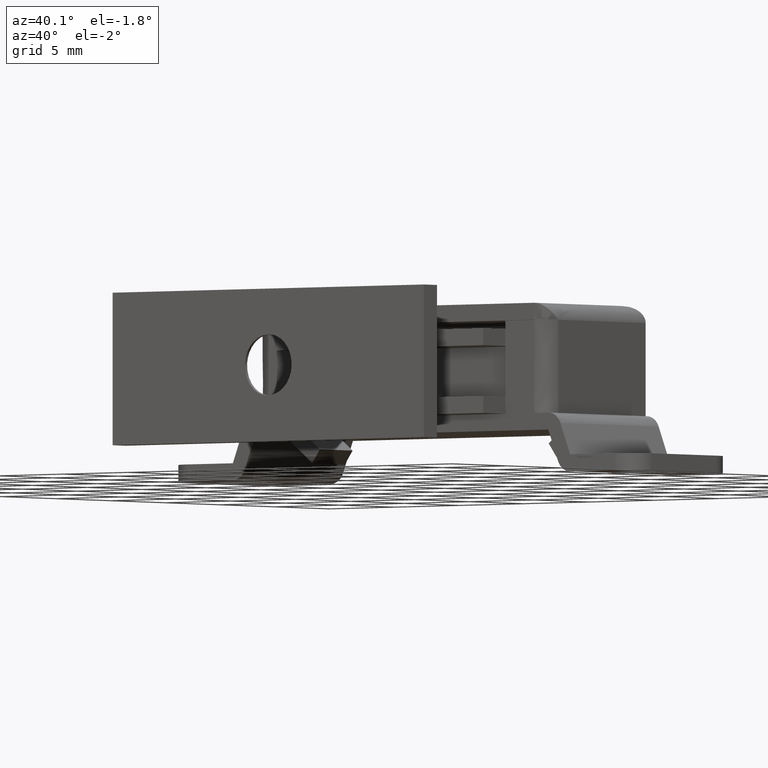
[diagram: clean part render]
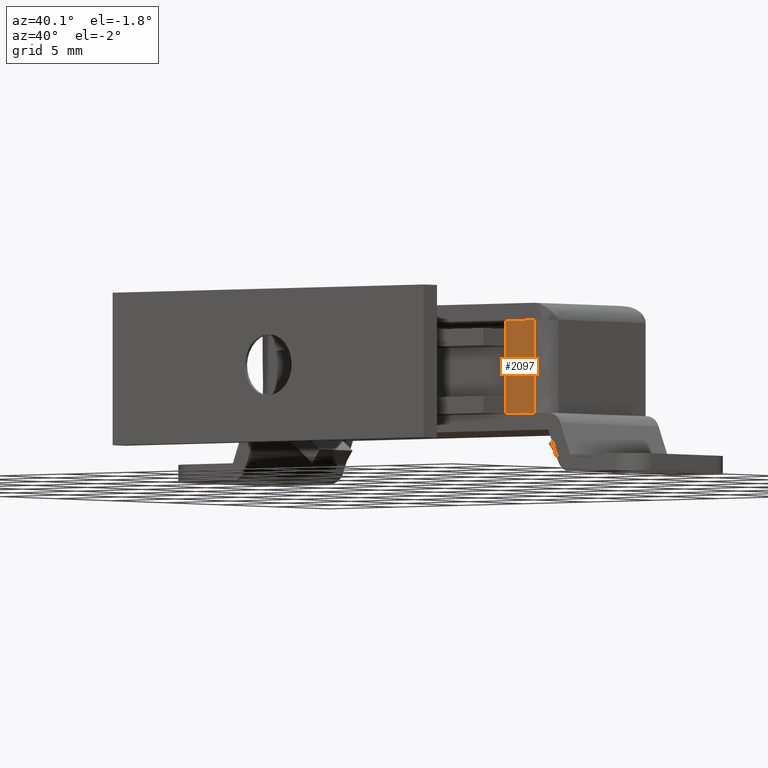
[diagram: same view with one face highlighted and labeled with its STEP entity id]
A machine part, auxiliary view. The second image highlights one B-rep face of the part: STEP entity #2097.
In plain terms, the highlighted face is a freeform B-spline surface patch.
Its self-contained STEP definition (entity closure, byte-faithful):
#974=CARTESIAN_POINT('',(8.0,-9.000000000000108,8.990000000000000));
#975=VERTEX_POINT('',#974);
#981=CARTESIAN_POINT('',(10.250000000000000,-9.000000000000108,8.990000000000000));
#982=VERTEX_POINT('',#981);
#983=CARTESIAN_POINT('',(8.0,-9.000000000000108,8.990000000000000));
#984=CARTESIAN_POINT('',(10.250000000000000,-9.000000000000108,8.990000000000000));
#985=QUASI_UNIFORM_CURVE('',1,(#983,#984),.UNSPECIFIED.,.F.,.U.);
#986=EDGE_CURVE('',#975,#982,#985,.T.);
#1447=CARTESIAN_POINT('',(10.250000000000000,-9.000000000000108,3.500000000000000));
#1448=VERTEX_POINT('',#1447);
#1496=CARTESIAN_POINT('',(10.250000000000000,-9.000000000000108,3.500000000000000));
#1497=CARTESIAN_POINT('',(10.250000000000000,-9.000000000000108,8.990000000000000));
#1498=QUASI_UNIFORM_CURVE('',1,(#1496,#1497),.UNSPECIFIED.,.F.,.U.);
#1499=EDGE_CURVE('',#1448,#982,#1498,.T.);
#2076=CARTESIAN_POINT('',(7.887612504360936,-9.000000000000108,9.264225283214548));
#2077=CARTESIAN_POINT('',(10.362387555988770,-9.000000000000108,9.264225283214548));
#2078=CARTESIAN_POINT('',(7.887612504360936,-9.000000000000108,3.225774373194478));
#2079=CARTESIAN_POINT('',(10.362387555988770,-9.000000000000108,3.225774373194478));
#2080=B_SPLINE_SURFACE_WITH_KNOTS('',1,1,((#2076,#2078),(#2077,#2079)),.UNSPECIFIED.,.F.,.F.,.U.,(2,2),(2,2),(0.0,2.474775051627832),(0.0,6.038450910020071),.UNSPECIFIED.);
#2081=ORIENTED_EDGE('',*,*,#986,.F.);
#2082=CARTESIAN_POINT('',(8.0,-9.000000000000108,3.500000000000000));
#2083=VERTEX_POINT('',#2082);
#2084=CARTESIAN_POINT('',(8.0,-9.000000000000108,8.990000000000000));
#2085=CARTESIAN_POINT('',(8.0,-9.000000000000108,3.500000000000000));
#2086=QUASI_UNIFORM_CURVE('',1,(#2084,#2085),.UNSPECIFIED.,.F.,.U.);
#2087=EDGE_CURVE('',#975,#2083,#2086,.T.);
#2088=ORIENTED_EDGE('',*,*,#2087,.T.);
#2089=CARTESIAN_POINT('',(8.0,-9.000000000000108,3.500000000000000));
#2090=CARTESIAN_POINT('',(10.250000000000000,-9.000000000000108,3.500000000000000));
#2091=QUASI_UNIFORM_CURVE('',1,(#2089,#2090),.UNSPECIFIED.,.F.,.U.);
#2092=EDGE_CURVE('',#2083,#1448,#2091,.T.);
#2093=ORIENTED_EDGE('',*,*,#2092,.T.);
#2094=ORIENTED_EDGE('',*,*,#1499,.T.);
#2095=EDGE_LOOP('',(#2081,#2088,#2093,#2094));
#2096=FACE_OUTER_BOUND('',#2095,.T.);
#2097=ADVANCED_FACE('',(#2096),#2080,.F.);